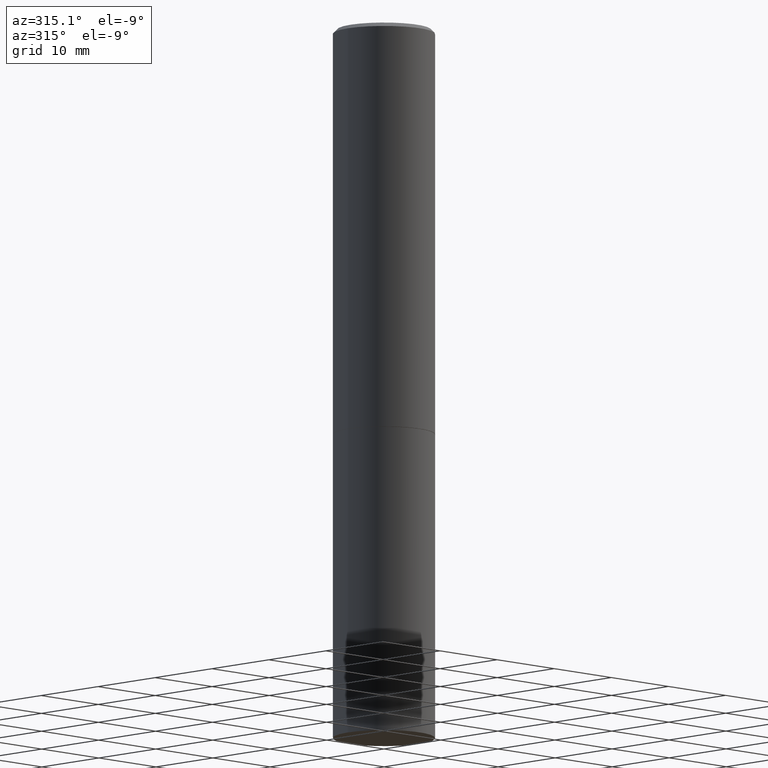
[diagram: clean part render]
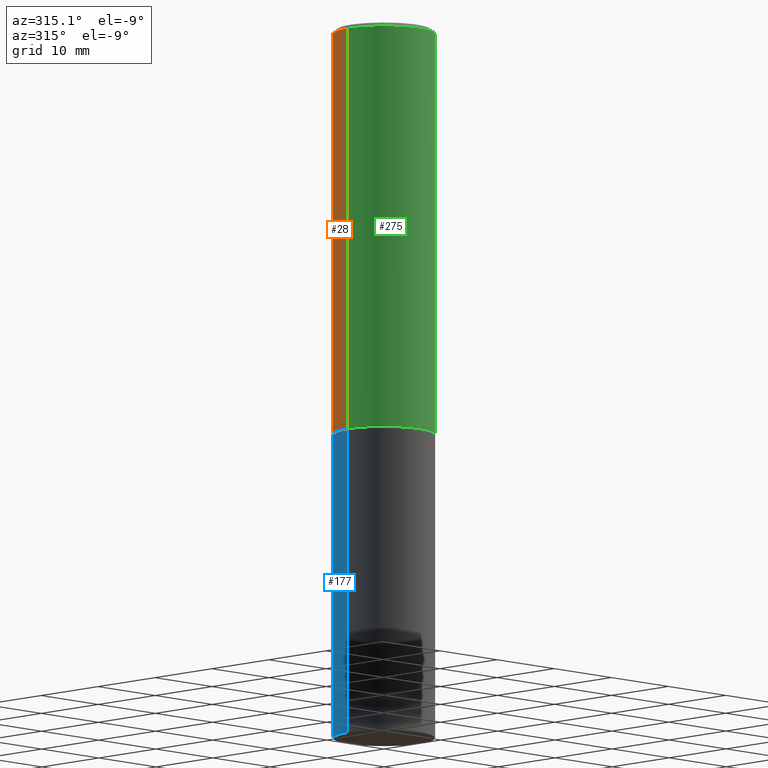
[diagram: same view with three faces highlighted in distinct colors, each labeled with its STEP entity id]
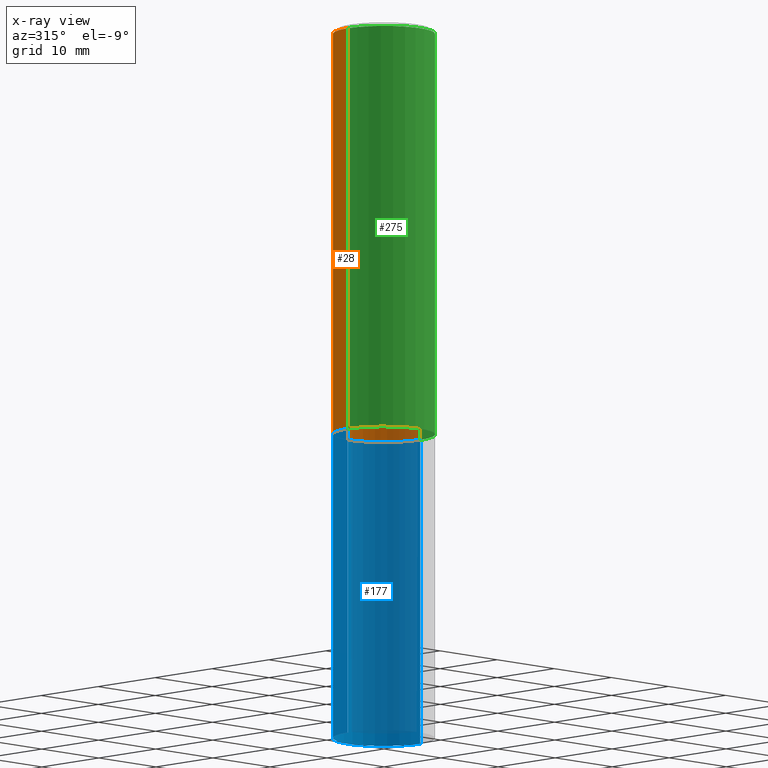
[diagram: x-ray of the same camera — body ghosted, the three highlighted faces saturated]
A machine part, auxiliary view with three faces highlighted in distinct colors.
The next image is the same camera in x-ray (body ghosted, the three faces saturated) — at least one of them is partly hidden behind the body in this view.
Their STEP definitions:

[orange] entity #28 — the highlighted cylindrical surface (partial cylindrical patch) has radius 6.35 mm, axis along (-0, 0, 1).
#1 = AXIS2_PLACEMENT_3D ( 'NONE', #301, #50, #27 ) ;
#7 = AXIS2_PLACEMENT_3D ( 'NONE', #220, #305, #144 ) ;
#27 = DIRECTION ( 'NONE',  ( 1.000000000000000000, -6.982962677686266711E-15, 0.000000000000000000 ) ) ;
#28 = ADVANCED_FACE ( 'NONE', ( #113 ), #274, .T. ) ;
#29 = DIRECTION ( 'NONE',  ( -2.445468806185136877E-29, 3.491481338843145188E-15, 1.000000000000000000 ) ) ;
#37 = EDGE_CURVE ( 'NONE', #72, #74, #195, .T. ) ;
#50 = DIRECTION ( 'NONE',  ( -2.445468806185136597E-29, 3.491481338843145583E-15, 1.000000000000000000 ) ) ;
#72 = VERTEX_POINT ( 'NONE', #176 ) ;
#74 = VERTEX_POINT ( 'NONE', #140 ) ;
#78 = ORIENTED_EDGE ( 'NONE', *, *, #137, .F. ) ;
#86 = LINE ( 'NONE', #282, #133 ) ;
#89 = VERTEX_POINT ( 'NONE', #279 ) ;
#100 = DIRECTION ( 'NONE',  ( -2.445468806185136597E-29, 3.491481338843145583E-15, 1.000000000000000000 ) ) ;
#113 = FACE_OUTER_BOUND ( 'NONE', #330, .T. ) ;
#133 = VECTOR ( 'NONE', #29, 39.37007874015748143 ) ;
#137 = EDGE_CURVE ( 'NONE', #295, #89, #86, .T. ) ;
#140 = CARTESIAN_POINT ( 'NONE',  ( -0.2499999999999998057, 1.675911042644702196E-15, -0.02000000000000005940 ) ) ;
#144 = DIRECTION ( 'NONE',  ( 1.000000000000000000, -6.982962677686266711E-15, 4.876176775795935793E-29 ) ) ;
#163 = EDGE_CURVE ( 'NONE', #89, #74, #318, .T. ) ;
#176 = CARTESIAN_POINT ( 'NONE',  ( -0.2500000000000000000, -1.748293572161903489E-15, -1.998999999999999666 ) ) ;
#190 = ORIENTED_EDGE ( 'NONE', *, *, #37, .T. ) ;
#195 = LINE ( 'NONE', #302, #252 ) ;
#199 = DIRECTION ( 'NONE',  ( -2.445468806185136877E-29, 3.491481338843145188E-15, 1.000000000000000000 ) ) ;
#214 = CARTESIAN_POINT ( 'NONE',  ( 4.888492143564087030E-29, -6.979471196347446580E-15, -1.998999999999999666 ) ) ;
#220 = CARTESIAN_POINT ( 'NONE',  ( 0.000000000000000000, 0.000000000000000000, 0.000000000000000000 ) ) ;
#252 = VECTOR ( 'NONE', #199, 39.37007874015748143 ) ;
#265 = ORIENTED_EDGE ( 'NONE', *, *, #163, .F. ) ;
#274 = CYLINDRICAL_SURFACE ( 'NONE', #7, 0.2499999999999998890 ) ;
#278 = CIRCLE ( 'NONE', #300, 0.2500000000000000000 ) ;
#279 = CARTESIAN_POINT ( 'NONE',  ( 0.2499999999999998057, -1.784954126219744611E-15, -0.02000000000000005940 ) ) ;
#282 = CARTESIAN_POINT ( 'NONE',  ( 0.2499999999999998890, -1.745740669421565889E-15, 1.219044193948983388E-29 ) ) ;
#285 = CARTESIAN_POINT ( 'NONE',  ( 0.2500000000000000000, -8.725211865769012469E-15, -1.998999999999999666 ) ) ;
#295 = VERTEX_POINT ( 'NONE', #285 ) ;
#300 = AXIS2_PLACEMENT_3D ( 'NONE', #214, #100, #323 ) ;
#301 = CARTESIAN_POINT ( 'NONE',  ( 4.890937612370288047E-31, -6.982962677686311331E-17, -0.02000000000000005940 ) ) ;
#302 = CARTESIAN_POINT ( 'NONE',  ( -0.2499999999999998890, 1.776356839400249676E-15, -1.229733772563726025E-29 ) ) ;
#305 = DIRECTION ( 'NONE',  ( -2.445468806185136597E-29, 3.491481338843145583E-15, 1.000000000000000000 ) ) ;
#318 = CIRCLE ( 'NONE', #1, 0.2499999999999998057 ) ;
#320 = ORIENTED_EDGE ( 'NONE', *, *, #337, .T. ) ;
#323 = DIRECTION ( 'NONE',  ( 1.000000000000000000, -6.982962677686266711E-15, 0.000000000000000000 ) ) ;
#330 = EDGE_LOOP ( 'NONE', ( #320, #190, #265, #78 ) ) ;
#337 = EDGE_CURVE ( 'NONE', #295, #72, #278, .T. ) ;

[blue] entity #177 — the highlighted cylindrical surface (partial cylindrical patch) has radius 6.35 mm, axis along (-0, 0, 1).
#19 = VERTEX_POINT ( 'NONE', #248 ) ;
#36 = AXIS2_PLACEMENT_3D ( 'NONE', #181, #118, #228 ) ;
#42 = VERTEX_POINT ( 'NONE', #56 ) ;
#47 = EDGE_CURVE ( 'NONE', #117, #19, #289, .T. ) ;
#53 = CARTESIAN_POINT ( 'NONE',  ( 0.2500000000000000000, -1.745740669421566678E-15, 1.219044193948983948E-29 ) ) ;
#56 = CARTESIAN_POINT ( 'NONE',  ( 0.2500000000000000000, -1.396592535537257602E-14, -3.500000000000000000 ) ) ;
#83 = DIRECTION ( 'NONE',  ( -2.445468806185136597E-29, 3.491481338843145583E-15, 1.000000000000000000 ) ) ;
#105 = DIRECTION ( 'NONE',  ( -2.445468806185136877E-29, 3.491481338843145188E-15, 1.000000000000000000 ) ) ;
#106 = CARTESIAN_POINT ( 'NONE',  ( 4.890937612370272633E-29, -6.982962677686290376E-15, -1.999999999999999778 ) ) ;
#109 = FACE_OUTER_BOUND ( 'NONE', #132, .T. ) ;
#117 = VERTEX_POINT ( 'NONE', #276 ) ;
#118 = DIRECTION ( 'NONE',  ( -2.445468806185136597E-29, 3.491481338843145583E-15, 1.000000000000000000 ) ) ;
#132 = EDGE_LOOP ( 'NONE', ( #229, #151, #296, #156 ) ) ;
#148 = EDGE_CURVE ( 'NONE', #189, #19, #363, .T. ) ;
#151 = ORIENTED_EDGE ( 'NONE', *, *, #148, .T. ) ;
#156 = ORIENTED_EDGE ( 'NONE', *, *, #196, .F. ) ;
#171 = CARTESIAN_POINT ( 'NONE',  ( 0.000000000000000000, 0.000000000000000000, 0.000000000000000000 ) ) ;
#173 = DIRECTION ( 'NONE',  ( -2.445468806185136877E-29, 3.491481338843145188E-15, 1.000000000000000000 ) ) ;
#177 = ADVANCED_FACE ( 'NONE', ( #109 ), #223, .T. ) ;
#179 = CIRCLE ( 'NONE', #36, 0.2500000000000000000 ) ;
#181 = CARTESIAN_POINT ( 'NONE',  ( 8.559140821647976968E-29, -1.222018468595100934E-14, -3.500000000000000000 ) ) ;
#189 = VERTEX_POINT ( 'NONE', #246 ) ;
#194 = CARTESIAN_POINT ( 'NONE',  ( -0.2500000000000000000, 1.776356839400250465E-15, -1.229733772563726445E-29 ) ) ;
#196 = EDGE_CURVE ( 'NONE', #42, #117, #303, .T. ) ;
#223 = CYLINDRICAL_SURFACE ( 'NONE', #332, 0.2500000000000000000 ) ;
#228 = DIRECTION ( 'NONE',  ( 1.000000000000000000, -6.982962677686270655E-15, 0.000000000000000000 ) ) ;
#229 = ORIENTED_EDGE ( 'NONE', *, *, #293, .T. ) ;
#244 = DIRECTION ( 'NONE',  ( -2.445468806185136597E-29, 3.491481338843145583E-15, 1.000000000000000000 ) ) ;
#246 = CARTESIAN_POINT ( 'NONE',  ( -0.2500000000000000000, -7.825216842418397817E-15, -3.500000000000000000 ) ) ;
#248 = CARTESIAN_POINT ( 'NONE',  ( -0.2500000000000000000, -7.825216842418397817E-15, -1.999999999999999778 ) ) ;
#271 = VECTOR ( 'NONE', #105, 39.37007874015748143 ) ;
#276 = CARTESIAN_POINT ( 'NONE',  ( 0.2500000000000000000, -8.728703347107857054E-15, -1.999999999999999778 ) ) ;
#289 = CIRCLE ( 'NONE', #344, 0.2500000000000000000 ) ;
#293 = EDGE_CURVE ( 'NONE', #42, #189, #179, .T. ) ;
#296 = ORIENTED_EDGE ( 'NONE', *, *, #47, .F. ) ;
#303 = LINE ( 'NONE', #53, #338 ) ;
#332 = AXIS2_PLACEMENT_3D ( 'NONE', #171, #83, #364 ) ;
#338 = VECTOR ( 'NONE', #173, 39.37007874015748143 ) ;
#339 = DIRECTION ( 'NONE',  ( 1.000000000000000000, -6.982962677686266711E-15, 0.000000000000000000 ) ) ;
#344 = AXIS2_PLACEMENT_3D ( 'NONE', #106, #244, #339 ) ;
#363 = LINE ( 'NONE', #194, #271 ) ;
#364 = DIRECTION ( 'NONE',  ( 1.000000000000000000, -6.982962677686266711E-15, 4.876176775795935793E-29 ) ) ;

[green] entity #275 — the highlighted cylindrical surface (partial cylindrical patch) has radius 6.35 mm, axis along (-0, 0, 1).
#5 = CARTESIAN_POINT ( 'NONE',  ( 0.000000000000000000, 0.000000000000000000, 0.000000000000000000 ) ) ;
#29 = DIRECTION ( 'NONE',  ( -2.445468806185136877E-29, 3.491481338843145188E-15, 1.000000000000000000 ) ) ;
#34 = DIRECTION ( 'NONE',  ( -2.445468806185136597E-29, 3.491481338843145583E-15, 1.000000000000000000 ) ) ;
#37 = EDGE_CURVE ( 'NONE', #72, #74, #195, .T. ) ;
#61 = ORIENTED_EDGE ( 'NONE', *, *, #81, .F. ) ;
#65 = FACE_OUTER_BOUND ( 'NONE', #119, .T. ) ;
#68 = AXIS2_PLACEMENT_3D ( 'NONE', #92, #34, #261 ) ;
#72 = VERTEX_POINT ( 'NONE', #176 ) ;
#74 = VERTEX_POINT ( 'NONE', #140 ) ;
#79 = ORIENTED_EDGE ( 'NONE', *, *, #263, .T. ) ;
#81 = EDGE_CURVE ( 'NONE', #74, #89, #362, .T. ) ;
#86 = LINE ( 'NONE', #282, #133 ) ;
#87 = DIRECTION ( 'NONE',  ( -2.445468806185136597E-29, 3.491481338843145583E-15, 1.000000000000000000 ) ) ;
#89 = VERTEX_POINT ( 'NONE', #279 ) ;
#92 = CARTESIAN_POINT ( 'NONE',  ( 4.888492143564087030E-29, -6.979471196347446580E-15, -1.998999999999999666 ) ) ;
#119 = EDGE_LOOP ( 'NONE', ( #262, #79, #241, #61 ) ) ;
#125 = AXIS2_PLACEMENT_3D ( 'NONE', #5, #87, #184 ) ;
#133 = VECTOR ( 'NONE', #29, 39.37007874015748143 ) ;
#137 = EDGE_CURVE ( 'NONE', #295, #89, #86, .T. ) ;
#140 = CARTESIAN_POINT ( 'NONE',  ( -0.2499999999999998057, 1.675911042644702196E-15, -0.02000000000000005940 ) ) ;
#141 = AXIS2_PLACEMENT_3D ( 'NONE', #198, #331, #224 ) ;
#176 = CARTESIAN_POINT ( 'NONE',  ( -0.2500000000000000000, -1.748293572161903489E-15, -1.998999999999999666 ) ) ;
#184 = DIRECTION ( 'NONE',  ( 1.000000000000000000, -6.982962677686266711E-15, 4.876176775795935793E-29 ) ) ;
#195 = LINE ( 'NONE', #302, #252 ) ;
#198 = CARTESIAN_POINT ( 'NONE',  ( 4.890937612370288047E-31, -6.982962677686311331E-17, -0.02000000000000005940 ) ) ;
#199 = DIRECTION ( 'NONE',  ( -2.445468806185136877E-29, 3.491481338843145188E-15, 1.000000000000000000 ) ) ;
#224 = DIRECTION ( 'NONE',  ( 1.000000000000000000, -6.982962677686266711E-15, 0.000000000000000000 ) ) ;
#241 = ORIENTED_EDGE ( 'NONE', *, *, #137, .T. ) ;
#252 = VECTOR ( 'NONE', #199, 39.37007874015748143 ) ;
#261 = DIRECTION ( 'NONE',  ( 1.000000000000000000, -6.982962677686266711E-15, 0.000000000000000000 ) ) ;
#262 = ORIENTED_EDGE ( 'NONE', *, *, #37, .F. ) ;
#263 = EDGE_CURVE ( 'NONE', #72, #295, #284, .T. ) ;
#275 = ADVANCED_FACE ( 'NONE', ( #65 ), #343, .T. ) ;
#279 = CARTESIAN_POINT ( 'NONE',  ( 0.2499999999999998057, -1.784954126219744611E-15, -0.02000000000000005940 ) ) ;
#282 = CARTESIAN_POINT ( 'NONE',  ( 0.2499999999999998890, -1.745740669421565889E-15, 1.219044193948983388E-29 ) ) ;
#284 = CIRCLE ( 'NONE', #68, 0.2500000000000000000 ) ;
#285 = CARTESIAN_POINT ( 'NONE',  ( 0.2500000000000000000, -8.725211865769012469E-15, -1.998999999999999666 ) ) ;
#295 = VERTEX_POINT ( 'NONE', #285 ) ;
#302 = CARTESIAN_POINT ( 'NONE',  ( -0.2499999999999998890, 1.776356839400249676E-15, -1.229733772563726025E-29 ) ) ;
#331 = DIRECTION ( 'NONE',  ( -2.445468806185136597E-29, 3.491481338843145583E-15, 1.000000000000000000 ) ) ;
#343 = CYLINDRICAL_SURFACE ( 'NONE', #125, 0.2499999999999998890 ) ;
#362 = CIRCLE ( 'NONE', #141, 0.2499999999999998057 ) ;